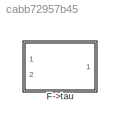
MODEL slx_cabb72957b45
KIND model
CONFIG AbsTol = auto
CONFIG EnableMultiTasking = off
CONFIG FixedStep = auto
CONFIG MaxStep = auto
CONFIG MinStep = auto
CONFIG RelTol = 1e-3
CONFIG SampleTimeConstraint = Unconstrained
CONFIG Solver = VariableStepAuto
CONFIG SolverName = VariableStepAuto
CONFIG StartTime = 0.0
CONFIG StopTime = 10.0
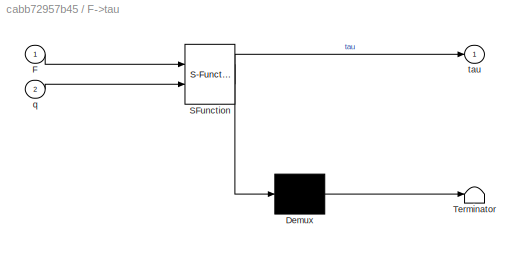
BLOCK [SubSystem] F->tau
  ErrorFcn = Stateflow.Translate.translate
  PermitHierarchicalResolution = ExplicitOnly
  Ports = [2, 1]
  RequestExecContextInheritance = off
  SFBlockType = MATLAB Function
  TreatAsAtomicUnit = on
BLOCK [Demux] F->tau/ Demux 
  Outputs = 1
  Ports = [1, 1]
BLOCK [S-Function] F->tau/ SFunction 
  EnableBusSupport = on
  FunctionName = sf_sfun
  PortCounts = [2 2]
  Ports = [2, 2]
  SFcnIsStateOwnerBlock = off
  SFunctionDeploymentMode = off
  Tag = Stateflow S-Function F_to_tau 2
BLOCK [Terminator] F->tau/ Terminator 
BLOCK [Inport] F->tau/F
  IconDisplay = Port number
BLOCK [Inport] F->tau/q
  IconDisplay = Port number
  Port = 2
BLOCK [Outport] F->tau/tau
  IconDisplay = Port number
CHART F->tau states=1 transitions=1
  STATE_LABEL 'eML_blk_kernel()'
  STATE_LABEL 'SCRIPT:\nfunction tau = fcn(F,q)\n\nq1 = q(1);\nq2 = q(2);\n\nJ = reshape([ -(16695324718374375*cos(q1) - 2251799813685248*2^(1/2)*sin(q1))/(450359962737049600*((sin(q1)/10 - 3339064943674875/9007199254740992)^2 + (cos(q1)/10 - 2^(1/2)/20)^2)^(1/2)),                                                                                                                                                            ...<+394ch>'
